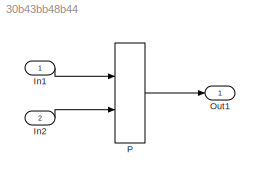
MODEL slx_30b43bb48b44
KIND model
CONFIG AbsTol = auto
CONFIG EnableMultiTasking = off
CONFIG FixedStep = auto
CONFIG MaxStep = auto
CONFIG MinStep = auto
CONFIG RelTol = 1e-3
CONFIG SampleTimeConstraint = Unconstrained
CONFIG Solver = FixedStepDiscrete
CONFIG SolverName = FixedStepDiscrete
CONFIG StartTime = 0.0
CONFIG StopTime = 10.0
BLOCK [Inport] In1
  BusOutputAsStruct = on
  IconDisplay = Port number
  OutDataTypeStr = Bus: kfBus
  OutMax = 2
  OutMin = 0
  PortDimensions = 1
BLOCK [Inport] In2
  BusOutputAsStruct = on
  IconDisplay = Port number
  OutDataTypeStr = Bus: kfBus
  OutMax = 5
  OutMin = 0
  Port = 2
BLOCK [Outport] Out1
  IconDisplay = Port number
BLOCK [Interpolation_n-D] P
  ExtrapMethod = Clip
  InitFcn = elems(1) = Simulink.BusElement;\nelems(1).Name = 'Index';\nelems(1).DataType = 'int8';\nelems(2) = Simulink.BusElement;\nelems(2).Name = 'Fraction';\nelems(2).DataType = 'double';\nkfBus = Simulink.Bus;\nkfBus.Elements = elems;\nclear elems;\nassignin('base', 'kfBus', kfBus);
  InputPortMap = u0,u1
  InternalRulePriority = Speed
  InterpMethod = Nearest
  OutDataTypeStr = single
  Ports = [2, 1]
  RequireIndexFractionAsBus = on
  SaturateOnIntegerOverflow = on
  Table = [80.3183340509526 48.3734811769776 28.795642690705 41.144442854385 22.1899019578152;38.1882501514622 76.2304289609025 70.2603197960193 90.9057780482215 114.571780768739]
  ValidIndexMayReachLast = on
LINE In1:1 -> P:1
LINE In2:1 -> P:2
LINE P:1 -> Out1:1
